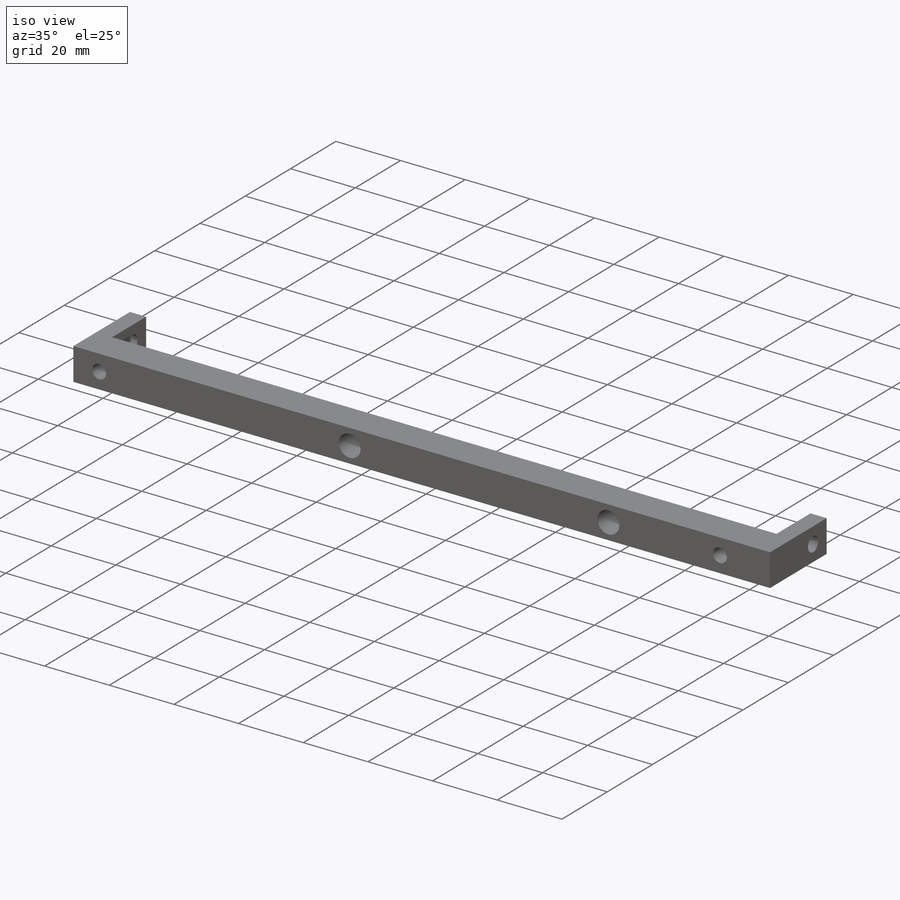
[diagram: iso view]
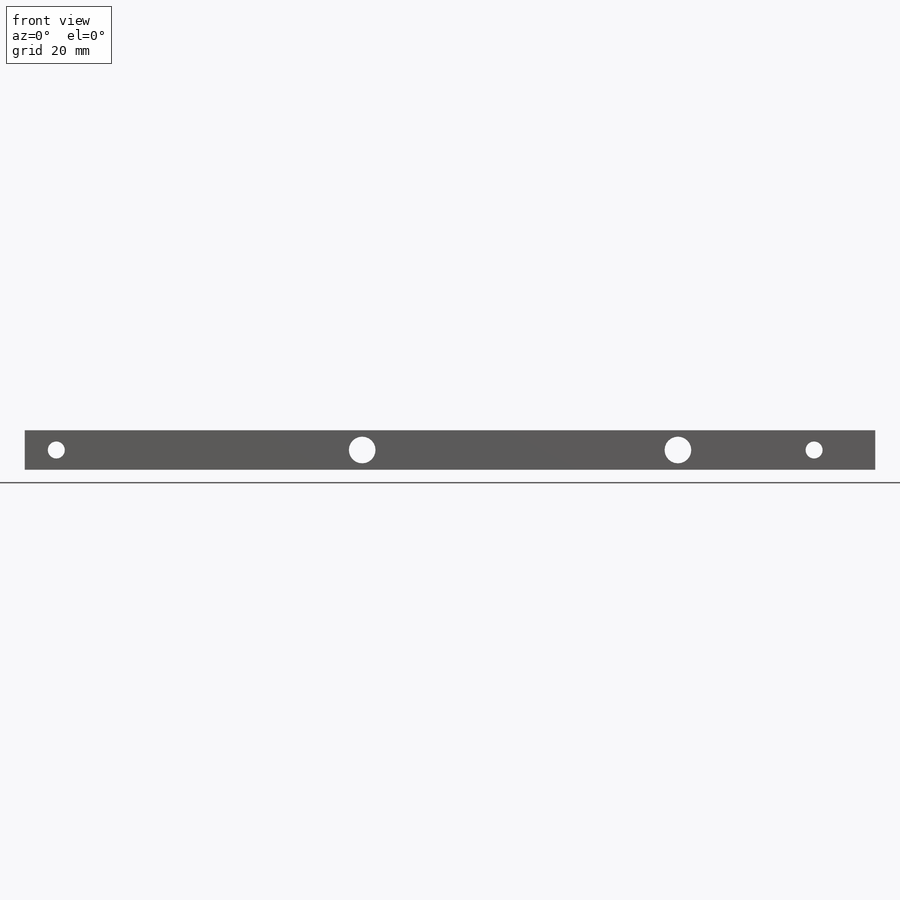
[diagram: front view]
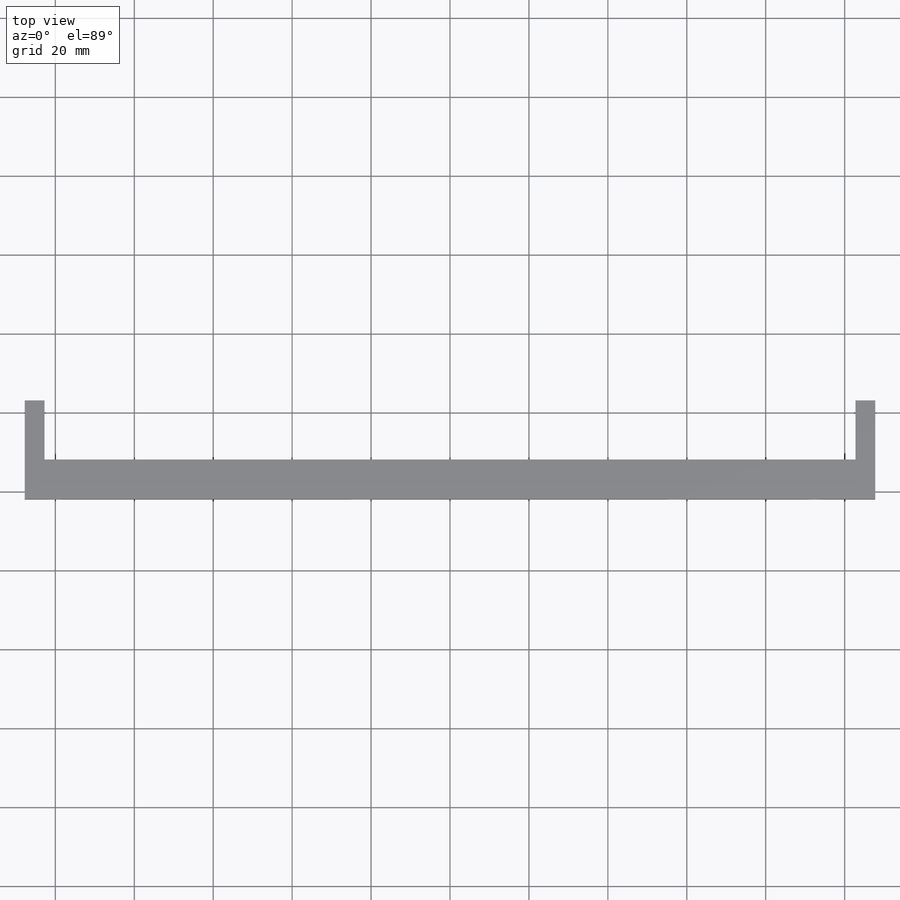
[diagram: top view]
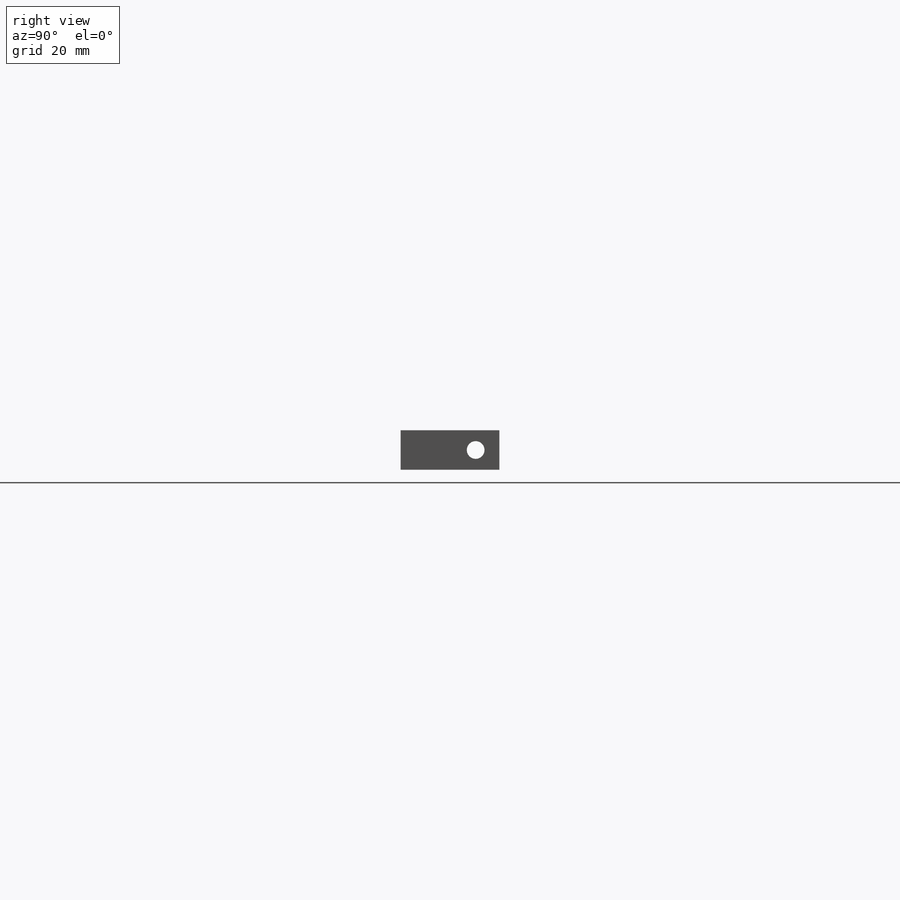
[diagram: right view]
SOLIDWORKS PART (.sldprt)
format: sldprt  version: not decoded by parser v0  size: 346,112 bytes
history: native  units: mm
features: sketch x13, cut_extrude x4, hole x4, material x1, plane x1, extrude x1, fillet x1 (+11 scaffold rows collapsed)
feature tree (36):
  scaffold x11  (default folders/planes/origin — collapsed)
  material  "6061-T6 Al"
  plane  "Plane1"  Offset=5mm
  sketch  "Sketch1"
  extrude  "Boss-Extrude1"  Depth=10mm
  sketch  "Sketch2"
  cut_extrude  "Cut-Extrude1"  Depth=10mm
  sketch  "Sketch3"
  cut_extrude  "Cut-Extrude2"  Depth=8.5mm
  sketch  "Sketch4"
  cut_extrude  "Cut-Extrude3"  Depth=8.5mm
  sketch  "Sketch5"
  cut_extrude  "Cut-Extrude4"  Depth=8.5mm
  hole  "Ø4.5 (4.5) Diameter Hole1"  Diameter=4.5mm Depth=5mm
  sketch  "Sketch7"
  sketch  "Sketch6"  dims[hole-wizard template sketch: 60 standard entries collapsed; hole parameters kept: c18.Thru Hole Depth=5.0mm]
  hole  "M4 Clearance Hole1"  Diameter=4.31mm Depth=25mm
  sketch  "Sketch9"  dims[D1=~7.99846mm D2=199.9996mm]
  sketch  "Sketch8"  dims[hole-wizard template sketch: 59 standard entries collapsed; hole parameters kept: c18.Thru Hole Dia.=4.31mm c18.Thru Hole Depth=25.0mm]
  hole  "Tapped Hole for 1/4-20 Helicoil1"  Diameter=6.7564mm Depth=20.523mm
  sketch  "Sketch11"
  sketch  "Sketch10"  dims[hole-wizard template sketch: 46 standard entries collapsed; hole parameters kept: c15.Tap Drill Dia.=6.7564mm c15.Tap Drill Depth=20.523mm c15.D3=~14.816244mm c15.Drill Angle=118.0deg]
  hole  "Ø4.5 (4.5) Diameter Hole2"  Diameter=4.5mm Depth=215.5mm
  sketch  "Sketch13"
  sketch  "Sketch12"  dims[hole-wizard template sketch: 60 standard entries collapsed; hole parameters kept: c18.Thru Hole Depth=215.5mm]
  fillet  "Fillet1"  Radius=3mm
decode coverage: 15 of 23 modeling features carry decoded parameters
note: ~ marks probable driven/reference dimensions
summary: Diameter pulled from absorbed wizard sketch
note: suppression state not decoded; provenance and decode notes live in map.json
